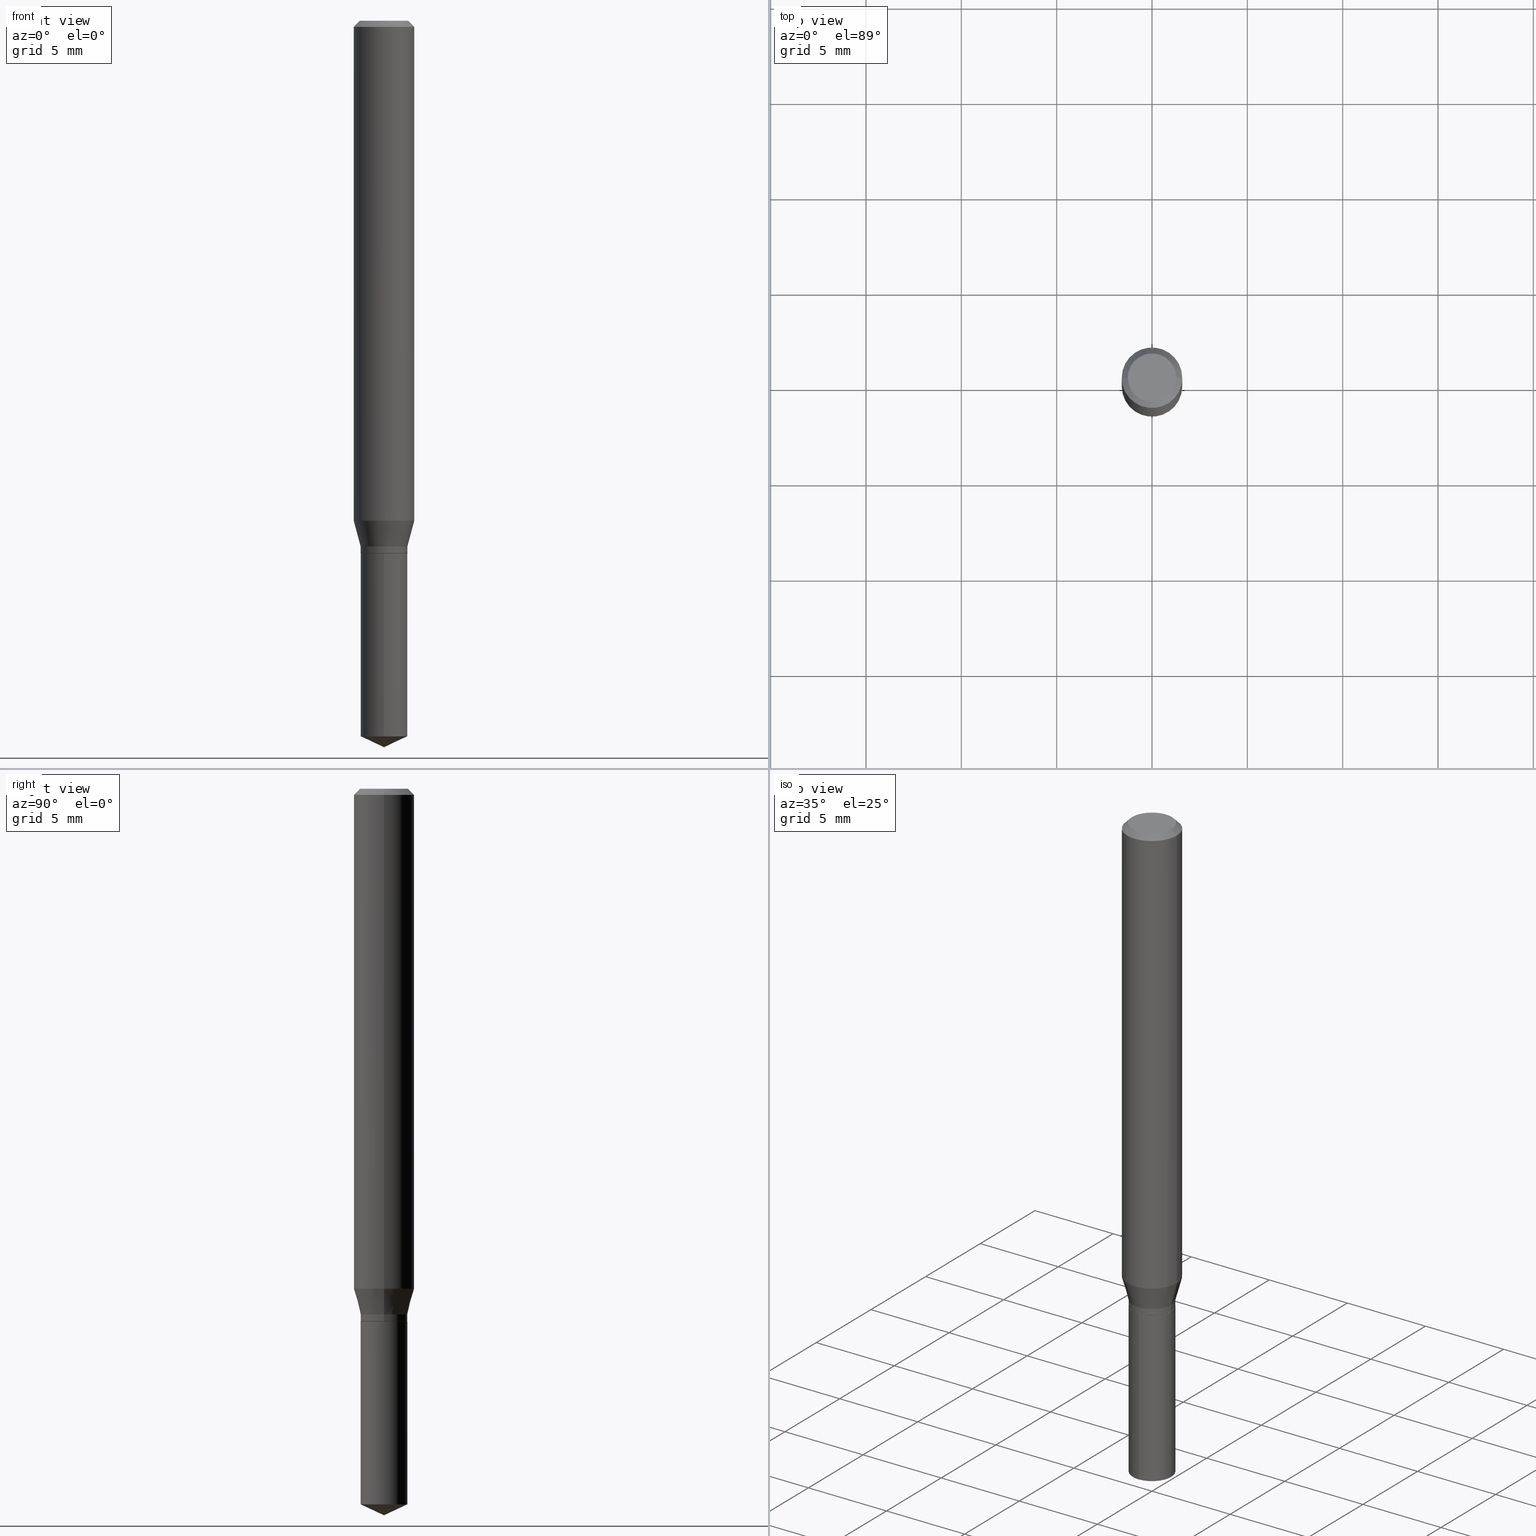
[diagram: canonical four-view strip — front | top / right | iso, engineering-drawing reading convention]
A machine part, canonical four-view strip (front | top / right | iso — engineering-drawing reading convention). The complete STEP part file that produces these views, byte-faithful:
ISO-10303-21;
HEADER;
FILE_DESCRIPTION (( 'STEP AP203' ),
    '1' );
FILE_NAME ('07205.STEP',
    '2024-04-23T19:59:56',
    ( '' ),
    ( '' ),
    'SwSTEP 2.0',
    'SolidWorks 2023',
    '' );
FILE_SCHEMA (( 'CONFIG_CONTROL_DESIGN' ));
ENDSEC;

DATA;
#1 = LINE ( 'NONE', #455, #189 ) ;
#2 = EDGE_CURVE ( 'NONE', #197, #322, #170, .T. ) ;
#3 = APPROVAL_ROLE ( '' ) ;
#4 = PERSON_AND_ORGANIZATION ( #334, #171 ) ;
#5 = VECTOR ( 'NONE', #80, 39.37007874015748854 ) ;
#6 = DIRECTION ( 'NONE',  ( -0.7071067811865451302, 2.468850131082231817E-15, -0.7071067811865499042 ) ) ;
#7 = EDGE_CURVE ( 'NONE', #117, #347, #198, .T. ) ;
#8 = ORIENTED_EDGE ( 'NONE', *, *, #234, .F. ) ;
#9 = ORIENTED_EDGE ( 'NONE', *, *, #402, .T. ) ;
#10 = DIRECTION ( 'NONE',  ( -6.328713451373382000E-15, -0.9063077870366501587, 0.4226182617406989972 ) ) ;
#11 = EDGE_LOOP ( 'NONE', ( #125, #356, #280, #8 ) ) ;
#12 = DIRECTION ( 'NONE',  ( 1.000000000000000000, -6.982962677686267499E-15, 0.000000000000000000 ) ) ;
#13 = DIRECTION ( 'NONE',  ( -0.2588190451025212391, 5.211531920934549464E-15, 0.9659258262890679791 ) ) ;
#14 = DIRECTION ( 'NONE',  ( -0.7071067811865232589, 7.493145998870265808E-15, 0.7071067811865715536 ) ) ;
#15 = ORIENTED_EDGE ( 'NONE', *, *, #2, .F. ) ;
#16 = CIRCLE ( 'NONE', #61, 0.06250000000000000000 ) ;
#17 = CARTESIAN_POINT ( 'NONE',  ( 0.06250000000000012490, -4.040755163728689015E-15, -1.032318275992143430 ) ) ;
#18 = VERTEX_POINT ( 'NONE', #175 ) ;
#19 = ADVANCED_FACE ( 'NONE', ( #328 ), #362, .F. ) ;
#20 = DIRECTION ( 'NONE',  ( 1.000000000000000000, -6.982962677686264344E-15, 0.000000000000000000 ) ) ;
#21 = ORIENTED_EDGE ( 'NONE', *, *, #360, .F. ) ;
#22 = CARTESIAN_POINT ( 'NONE',  ( -3.369279491983354469E-16, -0.04825000000000383843, -1.099999999999999867 ) ) ;
#23 = EDGE_CURVE ( 'NONE', #18, #359, #296, .T. ) ;
#24 = DIRECTION ( 'NONE',  ( -2.445468806185136597E-29, 3.491481338843145583E-15, 1.000000000000000000 ) ) ;
#25 = AXIS2_PLACEMENT_3D ( 'NONE', #446, #291, #290 ) ;
#26 = AXIS2_PLACEMENT_3D ( 'NONE', #390, #469, #355 ) ;
#27 = DIRECTION ( 'NONE',  ( -2.445399690415121530E-29, 3.491580316559632610E-15, 1.000000000000000000 ) ) ;
#28 = CYLINDRICAL_SURFACE ( 'NONE', #405, 0.06250000000000006939 ) ;
#29 = EDGE_CURVE ( 'NONE', #382, #161, #477, .T. ) ;
#30 = DIRECTION ( 'NONE',  ( 1.000000000000000000, -6.982962677686266711E-15, 0.000000000000000000 ) ) ;
#31 = AXIS2_PLACEMENT_3D ( 'NONE', #146, #366, #257 ) ;
#32 = LOCAL_TIME ( 15, 59, 56.00000000000000000, #60 ) ;
#33 = CYLINDRICAL_SURFACE ( 'NONE', #374, 0.06250000000000006939 ) ;
#34 = PRODUCT_DEFINITION ( 'UNKNOWN', '', #145, #50 ) ;
#35 = DIRECTION ( 'NONE',  ( -1.000000000000000000, 6.982962677686265922E-15, -4.876176775795935793E-29 ) ) ;
#36 = DIRECTION ( 'NONE',  ( -2.445468806185136597E-29, 3.491481338843145583E-15, 1.000000000000000000 ) ) ;
#37 = CARTESIAN_POINT ( 'NONE',  ( -0.06250000000000012490, -3.160230786523232758E-15, -1.032318275992143430 ) ) ;
#38 = DIRECTION ( 'NONE',  ( -2.445399690415121530E-29, 3.491580316559632610E-15, 1.000000000000000000 ) ) ;
#39 = ADVANCED_FACE ( 'NONE', ( #288 ), #284, .T. ) ;
#40 = VECTOR ( 'NONE', #104, 39.37007874015748143 ) ;
#41 = FACE_OUTER_BOUND ( 'NONE', #124, .T. ) ;
#42 = CALENDAR_DATE ( 2024, 23, 4 ) ;
#43 = EDGE_CURVE ( 'NONE', #161, #128, #398, .T. ) ;
#44 = CARTESIAN_POINT ( 'NONE',  ( 0.04825000000000000122, -3.369279491983623668E-16, 2.352755294321538936E-30 ) ) ;
#45 = EDGE_CURVE ( 'NONE', #117, #464, #381, .T. ) ;
#46 = ADVANCED_BREP_SHAPE_REPRESENTATION ( '07205', ( #56, #217, #481 ), #354 ) ;
#47 = EDGE_LOOP ( 'NONE', ( #273, #466, #96, #457 ) ) ;
#48 = CONICAL_SURFACE ( 'NONE', #188, 0.06250000000000000000, 0.7853981633974449483 ) ;
#49 = APPROVAL_STATUS ( 'not_yet_approved' ) ;
#50 = DESIGN_CONTEXT ( 'detailed design', #70, 'design' ) ;
#51 = CARTESIAN_POINT ( 'NONE',  ( 3.668099535622682155E-29, -5.237370474839448718E-15, -1.500000000000000222 ) ) ;
#52 = ORIENTED_EDGE ( 'NONE', *, *, #130, .F. ) ;
#53 = ORIENTED_EDGE ( 'NONE', *, *, #400, .T. ) ;
#54 = LINE ( 'NONE', #199, #289 ) ;
#55 = EDGE_LOOP ( 'NONE', ( #345, #101, #231, #310 ) ) ;
#56 = MANIFOLD_SOLID_BREP ( 'Body-Move/Copy2[1]', #473 ) ;
#57 = EDGE_LOOP ( 'NONE', ( #421, #203, #98, #133 ) ) ;
#58 = CC_DESIGN_PERSON_AND_ORGANIZATION_ASSIGNMENT ( #126, #121, ( #182 ) ) ;
#59 = VERTEX_POINT ( 'NONE', #472 ) ;
#60 = COORDINATED_UNIVERSAL_TIME_OFFSET ( 5, 0, .BEHIND. ) ;
#61 = AXIS2_PLACEMENT_3D ( 'NONE', #333, #449, #30 ) ;
#62 = AXIS2_PLACEMENT_3D ( 'NONE', #465, #321, #166 ) ;
#63 = FACE_OUTER_BOUND ( 'NONE', #475, .T. ) ;
#64 = DIRECTION ( 'NONE',  ( -2.445468806185136877E-29, 3.491481338843145188E-15, 1.000000000000000000 ) ) ;
#65 = EDGE_LOOP ( 'NONE', ( #191, #270, #236, #239 ) ) ;
#66 = DIRECTION ( 'NONE',  ( -1.000000000000000000, 6.982962677686266711E-15, 0.000000000000000000 ) ) ;
#67 = DIRECTION ( 'NONE',  ( -2.445399690415121810E-29, 3.491580316559632610E-15, 1.000000000000000000 ) ) ;
#68 = DIRECTION ( 'NONE',  ( -2.445399690415121530E-29, 3.491580316559632610E-15, 1.000000000000000000 ) ) ;
#69 = AXIS2_PLACEMENT_3D ( 'NONE', #95, #237, #388 ) ;
#70 = APPLICATION_CONTEXT ( 'configuration controlled 3d designs of mechanical parts and assemblies' ) ;
#71 = FACE_OUTER_BOUND ( 'NONE', #55, .T. ) ;
#72 = LINE ( 'NONE', #115, #453 ) ;
#73 = EDGE_CURVE ( 'NONE', #382, #59, #204, .T. ) ;
#74 = CARTESIAN_POINT ( 'NONE',  ( 0.04825000000000000122, -4.175811681256400620E-15, -1.099499999999999922 ) ) ;
#75 = AXIS2_PLACEMENT_3D ( 'NONE', #206, #468, #20 ) ;
#76 = CONICAL_SURFACE ( 'NONE', #69, 0.06250000000000000000, 0.7853981633974449483 ) ;
#77 = CARTESIAN_POINT ( 'NONE',  ( 0.000000000000000000, 0.000000000000000000, 0.000000000000000000 ) ) ;
#78 = ADVANCED_FACE ( 'NONE', ( #71 ), #210, .T. ) ;
#79 = FACE_OUTER_BOUND ( 'NONE', #378, .T. ) ;
#80 = DIRECTION ( 'NONE',  ( 0.7071067811865232589, -2.468850131082003836E-15, 0.7071067811865715536 ) ) ;
#81 = PLANE ( 'NONE',  #298 ) ;
#82 = DIRECTION ( 'NONE',  ( -2.445468806185136877E-29, 3.491481338843145188E-15, 1.000000000000000000 ) ) ;
#83 = AXIS2_PLACEMENT_3D ( 'NONE', #308, #377, #413 ) ;
#84 = DATE_AND_TIME ( #94, #480 ) ;
#85 = COORDINATED_UNIVERSAL_TIME_OFFSET ( 5, 0, .BEHIND. ) ;
#86 = ORIENTED_EDGE ( 'NONE', *, *, #292, .F. ) ;
#87 = CALENDAR_DATE ( 2024, 23, 4 ) ;
#88 = PERSON_AND_ORGANIZATION ( #334, #171 ) ;
#89 = ORIENTED_EDGE ( 'NONE', *, *, #295, .T. ) ;
#90 = EDGE_LOOP ( 'NONE', ( #318, #428 ) ) ;
#91 = VECTOR ( 'NONE', #13, 39.37007874015748854 ) ;
#92 = AXIS2_PLACEMENT_3D ( 'NONE', #112, #338, #408 ) ;
#93 = CARTESIAN_POINT ( 'NONE',  ( 2.688792952400557567E-29, -3.838883732058038598E-15, -1.099499999999999922 ) ) ;
#94 = CALENDAR_DATE ( 2024, 23, 4 ) ;
#95 = CARTESIAN_POINT ( 'NONE',  ( 3.056836007731442729E-31, -4.364351673553962300E-17, -0.01250000000000008916 ) ) ;
#96 = ORIENTED_EDGE ( 'NONE', *, *, #2, .T. ) ;
#97 = DIRECTION ( 'NONE',  ( 2.445399690415121250E-29, -3.491580316559632610E-15, -1.000000000000000000 ) ) ;
#98 = ORIENTED_EDGE ( 'NONE', *, *, #234, .T. ) ;
#99 = CARTESIAN_POINT ( 'NONE',  ( 2.690015686803650369E-29, -3.840629472727460101E-15, -1.100000000000000089 ) ) ;
#100 = ADVANCED_FACE ( 'NONE', ( #63 ), #28, .T. ) ;
#101 = ORIENTED_EDGE ( 'NONE', *, *, #357, .T. ) ;
#102 = CONICAL_SURFACE ( 'NONE', #26, 0.04775000000000000078, 0.7853981633974141952 ) ;
#103 = FACE_OUTER_BOUND ( 'NONE', #387, .T. ) ;
#104 = DIRECTION ( 'NONE',  ( -2.445399690415121810E-29, 3.491580316559632610E-15, 1.000000000000000000 ) ) ;
#105 = ORIENTED_EDGE ( 'NONE', *, *, #254, .F. ) ;
#106 = DIRECTION ( 'NONE',  ( -2.438088387897960049E-29, 3.491481338843145188E-15, 1.000000000000000000 ) ) ;
#107 = CARTESIAN_POINT ( 'NONE',  ( 3.613155672880236860E-29, -5.158703330938744656E-15, -1.477500655494021764 ) ) ;
#108 = CARTESIAN_POINT ( 'NONE',  ( 1.946643104841063088E-47, -2.779290439833033990E-33, -7.960204194457798443E-19 ) ) ;
#109 = APPLICATION_CONTEXT ( 'configuration controlled 3d designs of mechanical parts and assemblies' ) ;
#110 = DIRECTION ( 'NONE',  ( -6.982962677686266711E-15, -1.000000000000000000, 2.830930563382656003E-15 ) ) ;
#111 = EDGE_CURVE ( 'NONE', #347, #460, #194, .T. ) ;
#112 = CARTESIAN_POINT ( 'NONE',  ( 2.690015686803650369E-29, -3.840629472727460101E-15, -1.100000000000000089 ) ) ;
#113 = DIRECTION ( 'NONE',  ( 1.000000000000000000, -6.982962677686266711E-15, 4.876176775795935793E-29 ) ) ;
#114 = DIRECTION ( 'NONE',  ( 0.7071067811865451302, -7.319954787623248157E-15, -0.7071067811865499042 ) ) ;
#115 = CARTESIAN_POINT ( 'NONE',  ( 3.668252923656895710E-29, -5.237152723863177100E-15, -1.500000000000000222 ) ) ;
#116 = ADVANCED_FACE ( 'NONE', ( #248 ), #342, .T. ) ;
#117 = VERTEX_POINT ( 'NONE', #471 ) ;
#118 = AXIS2_PLACEMENT_3D ( 'NONE', #281, #324, #174 ) ;
#119 = CIRCLE ( 'NONE', #454, 0.04825000000000000122 ) ;
#120 = VERTEX_POINT ( 'NONE', #285 ) ;
#121 = PERSON_AND_ORGANIZATION_ROLE ( 'classification_officer' ) ;
#122 = LINE ( 'NONE', #44, #205 ) ;
#123 = PERSON_AND_ORGANIZATION ( #334, #171 ) ;
#124 = EDGE_LOOP ( 'NONE', ( #163, #470, #136, #200 ) ) ;
#125 = ORIENTED_EDGE ( 'NONE', *, *, #360, .T. ) ;
#126 = PERSON_AND_ORGANIZATION ( #334, #171 ) ;
#127 = EDGE_LOOP ( 'NONE', ( #459, #196, #21, #167 ) ) ;
#128 = VERTEX_POINT ( 'NONE', #176 ) ;
#129 = AXIS2_PLACEMENT_3D ( 'NONE', #178, #68, #283 ) ;
#130 = EDGE_CURVE ( 'NONE', #347, #322, #437, .T. ) ;
#131 = CIRCLE ( 'NONE', #306, 0.04825000000000000122 ) ;
#132 = CARTESIAN_POINT ( 'NONE',  ( -0.04825000000000000122, 3.428368700042483484E-16, -2.373386181047991895E-30 ) ) ;
#133 = ORIENTED_EDGE ( 'NONE', *, *, #111, .F. ) ;
#134 = DIRECTION ( 'NONE',  ( 1.000000000000000000, -6.982962677686265922E-15, 4.876176775795935793E-29 ) ) ;
#135 = ADVANCED_FACE ( 'NONE', ( #434 ), #226, .T. ) ;
#136 = ORIENTED_EDGE ( 'NONE', *, *, #29, .T. ) ;
#137 = CARTESIAN_POINT ( 'NONE',  ( 3.668099535622682715E-29, -5.237370474839449507E-15, -1.500000000000000222 ) ) ;
#138 = DIRECTION ( 'NONE',  ( 1.000000000000000000, -6.982962677686266711E-15, 4.876176775795935232E-29 ) ) ;
#139 = VERTEX_POINT ( 'NONE', #137 ) ;
#140 = DIRECTION ( 'NONE',  ( -2.445468806185136597E-29, 3.491481338843145583E-15, 1.000000000000000000 ) ) ;
#141 = DIRECTION ( 'NONE',  ( 1.000000000000000000, -6.982962677686267499E-15, 0.000000000000000000 ) ) ;
#142 = CC_DESIGN_PERSON_AND_ORGANIZATION_ASSIGNMENT ( #123, #271, ( #34 ) ) ;
#143 = FACE_OUTER_BOUND ( 'NONE', #169, .T. ) ;
#144 = AXIS2_PLACEMENT_3D ( 'NONE', #287, #365, #141 ) ;
#145 = PRODUCT_DEFINITION_FORMATION_WITH_SPECIFIED_SOURCE ( 'ANY', '', #150, .NOT_KNOWN. ) ;
#146 = CARTESIAN_POINT ( 'NONE',  ( 3.893286209682126177E-47, -5.558580879666067980E-33, -1.592040838891559689E-18 ) ) ;
#147 = CARTESIAN_POINT ( 'NONE',  ( 0.06250000000000000000, -4.800786840909313294E-16, -0.01250000000000008916 ) ) ;
#148 = EDGE_CURVE ( 'NONE', #59, #128, #431, .T. ) ;
#149 = CARTESIAN_POINT ( 'NONE',  ( 0.000000000000000000, 0.000000000000000000, 0.000000000000000000 ) ) ;
#150 = PRODUCT ( '07205', '07205', '', ( #261 ) ) ;
#151 = DIRECTION ( 'NONE',  ( -6.982962677686267499E-15, -1.000000000000000000, 3.520397390770433360E-15 ) ) ;
#152 = AXIS2_PLACEMENT_3D ( 'NONE', #478, #442, #110 ) ;
#153 = AXIS2_PLACEMENT_3D ( 'NONE', #346, #97, #229 ) ;
#154 = DIRECTION ( 'NONE',  ( -2.445399690415121530E-29, 3.491580316559632610E-15, 1.000000000000000000 ) ) ;
#155 = CARTESIAN_POINT ( 'NONE',  ( -0.04775000000000000078, -3.498696089227901352E-15, -1.100000000000000089 ) ) ;
#156 = DATE_TIME_ROLE ( 'creation_date' ) ;
#157 = PERSON_AND_ORGANIZATION ( #334, #171 ) ;
#158 = LOCAL_TIME ( 15, 59, 56.00000000000000000, #85 ) ;
#159 = APPROVAL_STATUS ( 'not_yet_approved' ) ;
#160 = CARTESIAN_POINT ( 'NONE',  ( -3.369279491983261778E-16, -0.04825000000000515682, -1.477500655494021320 ) ) ;
#161 = VERTEX_POINT ( 'NONE', #364 ) ;
#162 = ADVANCED_FACE ( 'NONE', ( #103 ), #48, .T. ) ;
#163 = ORIENTED_EDGE ( 'NONE', *, *, #148, .F. ) ;
#164 = CARTESIAN_POINT ( 'NONE',  ( 3.056836007731442729E-31, -4.364351673553962300E-17, -0.01250000000000008916 ) ) ;
#165 = APPROVAL ( #159, 'UNSPECIFIED' ) ;
#166 = DIRECTION ( 'NONE',  ( 1.000000000000000000, -6.982962677686265922E-15, 4.875957971899673662E-29 ) ) ;
#167 = ORIENTED_EDGE ( 'NONE', *, *, #386, .F. ) ;
#168 = VERTEX_POINT ( 'NONE', #361 ) ;
#169 = EDGE_LOOP ( 'NONE', ( #315, #272, #173, #353 ) ) ;
#170 = CIRCLE ( 'NONE', #440, 0.06250000000000000000 ) ;
#171 = ORGANIZATION ( 'UNSPECIFIED', 'UNSPECIFIED', '' ) ;
#172 = CARTESIAN_POINT ( 'NONE',  ( 0.04825000000000000122, -4.126930942512597731E-15, -1.085500000000000131 ) ) ;
#173 = ORIENTED_EDGE ( 'NONE', *, *, #218, .F. ) ;
#174 = DIRECTION ( 'NONE',  ( 1.000000000000000000, -6.982962677686267499E-15, 0.000000000000000000 ) ) ;
#175 = CARTESIAN_POINT ( 'NONE',  ( 0.04775000000000000078, -4.174065940586979116E-15, -1.100000000000000089 ) ) ;
#176 = CARTESIAN_POINT ( 'NONE',  ( 3.428368700042844881E-16, 0.04824999999999615707, -1.100000000000000089 ) ) ;
#177 = EDGE_CURVE ( 'NONE', #59, #382, #180, .T. ) ;
#178 = CARTESIAN_POINT ( 'NONE',  ( -9.260740279983036507E-28, 1.322265303911854087E-13, 37.87007874015748143 ) ) ;
#179 = DIRECTION ( 'NONE',  ( 1.000000000000000000, -6.982962677686266711E-15, 4.876176775795935793E-29 ) ) ;
#180 = CIRCLE ( 'NONE', #325, 0.04825000000000000122 ) ;
#181 = DIRECTION ( 'NONE',  ( -6.982962677686266711E-15, -1.000000000000000000, 2.830930563382656003E-15 ) ) ;
#182 = SECURITY_CLASSIFICATION ( '', '', #312 ) ;
#183 = DIRECTION ( 'NONE',  ( -6.982962677686266711E-15, -1.000000000000000000, 2.830930563382656003E-15 ) ) ;
#184 = CC_DESIGN_DATE_AND_TIME_ASSIGNMENT ( #417, #241, ( #182 ) ) ;
#185 = CARTESIAN_POINT ( 'NONE',  ( -9.260740279983036507E-28, 1.322265303911854087E-13, 37.87007874015748143 ) ) ;
#186 =( LENGTH_UNIT ( ) NAMED_UNIT ( * ) SI_UNIT ( $, .METRE. ) );
#187 = DIRECTION ( 'NONE',  ( 0.2588190451025212391, 1.565188264969622362E-15, 0.9659258262890679791 ) ) ;
#188 = AXIS2_PLACEMENT_3D ( 'NONE', #247, #396, #66 ) ;
#189 = VECTOR ( 'NONE', #6, 39.37007874015748143 ) ;
#190 = DATE_AND_TIME ( #42, #407 ) ;
#191 = ORIENTED_EDGE ( 'NONE', *, *, #438, .F. ) ;
#192 = DIRECTION ( 'NONE',  ( -2.445468806185136597E-29, 3.491481338843145583E-15, 1.000000000000000000 ) ) ;
#193 = ADVANCED_FACE ( 'NONE', ( #373 ), #489, .T. ) ;
#194 = CIRCLE ( 'NONE', #75, 0.06250000000000012490 ) ;
#195 = ORIENTED_EDGE ( 'NONE', *, *, #130, .T. ) ;
#196 = ORIENTED_EDGE ( 'NONE', *, *, #435, .T. ) ;
#197 = VERTEX_POINT ( 'NONE', #147 ) ;
#198 = LINE ( 'NONE', #340, #91 ) ;
#199 = CARTESIAN_POINT ( 'NONE',  ( -0.04775000000000000078, -3.501345316402012553E-15, -1.100000000000000089 ) ) ;
#200 = ORIENTED_EDGE ( 'NONE', *, *, #331, .F. ) ;
#201 = SHAPE_DEFINITION_REPRESENTATION ( #483, #46 ) ;
#202 = AXIS2_PLACEMENT_3D ( 'NONE', #185, #482, #151 ) ;
#203 = ORIENTED_EDGE ( 'NONE', *, *, #45, .T. ) ;
#204 = CIRCLE ( 'NONE', #411, 0.04825000000000000122 ) ;
#205 = VECTOR ( 'NONE', #64, 39.37007874015748143 ) ;
#206 = CARTESIAN_POINT ( 'NONE',  ( 2.524502141993605107E-29, -3.604319996373296557E-15, -1.032318275992143430 ) ) ;
#207 = ORIENTED_EDGE ( 'NONE', *, *, #267, .F. ) ;
#208 = CC_DESIGN_DATE_AND_TIME_ASSIGNMENT ( #190, #156, ( #34 ) ) ;
#209 = CARTESIAN_POINT ( 'NONE',  ( 2.654556389113966413E-29, -3.790002993314234920E-15, -1.085500000000000131 ) ) ;
#210 = CYLINDRICAL_SURFACE ( 'NONE', #256, 0.04825000000000000122 ) ;
#211 = FACE_OUTER_BOUND ( 'NONE', #314, .T. ) ;
#212 = VECTOR ( 'NONE', #67, 39.37007874015748143 ) ;
#213 = CARTESIAN_POINT ( 'NONE',  ( 3.428368700042751696E-16, 0.04824999999999615707, -1.100000000000000089 ) ) ;
#214 = ADVANCED_FACE ( 'NONE', ( #293 ), #251, .T. ) ;
#215 = DIRECTION ( 'NONE',  ( -6.982962677686266711E-15, -1.000000000000000000, 2.830930563382656003E-15 ) ) ;
#216 = DIRECTION ( 'NONE',  ( 2.438088387897960049E-29, -3.491481338843145188E-15, -1.000000000000000000 ) ) ;
#217 = MANIFOLD_SOLID_BREP ( 'Body-Move/Copy2[2]', #367 ) ;
#218 = EDGE_CURVE ( 'NONE', #245, #120, #479, .T. ) ;
#219 = FACE_OUTER_BOUND ( 'NONE', #395, .T. ) ;
#220 = CC_DESIGN_SECURITY_CLASSIFICATION ( #182, ( #145 ) ) ;
#221 =( NAMED_UNIT ( * ) SI_UNIT ( $, .STERADIAN. ) SOLID_ANGLE_UNIT ( ) );
#222 = PLANE ( 'NONE',  #153 ) ;
#223 = LINE ( 'NONE', #404, #5 ) ;
#224 = CARTESIAN_POINT ( 'NONE',  ( 3.613155672880236860E-29, -5.158703330938744656E-15, -1.477500655494021764 ) ) ;
#225 = DIRECTION ( 'NONE',  ( -2.445399690415121530E-29, 3.491580316559632610E-15, 1.000000000000000000 ) ) ;
#226 = CONICAL_SURFACE ( 'NONE', #129, 84.42940631927483253, 1.134464013796318227 ) ;
#227 = ADVANCED_FACE ( 'NONE', ( #410 ), #297, .T. ) ;
#228 = LOCAL_TIME ( 15, 59, 56.00000000000000000, #309 ) ;
#229 = DIRECTION ( 'NONE',  ( 6.982962677686265922E-15, 1.000000000000000000, -3.491580316559632610E-15 ) ) ;
#230 = APPROVAL_DATE_TIME ( #84, #371 ) ;
#231 = ORIENTED_EDGE ( 'NONE', *, *, #386, .T. ) ;
#232 = DATE_AND_TIME ( #452, #228 ) ;
#233 = ORIENTED_EDGE ( 'NONE', *, *, #177, .F. ) ;
#234 = EDGE_CURVE ( 'NONE', #464, #460, #370, .T. ) ;
#235 = VECTOR ( 'NONE', #279, 39.37007874015748143 ) ;
#236 = ORIENTED_EDGE ( 'NONE', *, *, #490, .T. ) ;
#237 = DIRECTION ( 'NONE',  ( 2.445468806185136597E-29, -3.491481338843145583E-15, -1.000000000000000000 ) ) ;
#238 = ORIENTED_EDGE ( 'NONE', *, *, #148, .T. ) ;
#239 = ORIENTED_EDGE ( 'NONE', *, *, #357, .F. ) ;
#240 = ORIENTED_EDGE ( 'NONE', *, *, #402, .F. ) ;
#241 = DATE_TIME_ROLE ( 'classification_date' ) ;
#242 = DIRECTION ( 'NONE',  ( -2.445468806185136597E-29, 3.491481338843145583E-15, 1.000000000000000000 ) ) ;
#243 = ADVANCED_FACE ( 'NONE', ( #41 ), #409, .T. ) ;
#244 = CIRCLE ( 'NONE', #31, 0.04999999999999999584 ) ;
#245 = VERTEX_POINT ( 'NONE', #74 ) ;
#246 = CIRCLE ( 'NONE', #92, 0.04775000000000000078 ) ;
#247 = CARTESIAN_POINT ( 'NONE',  ( 3.056836007731442729E-31, -4.364351673553962300E-17, -0.01250000000000008916 ) ) ;
#248 = FACE_OUTER_BOUND ( 'NONE', #11, .T. ) ;
#249 = CARTESIAN_POINT ( 'NONE',  ( -0.06250000000000006939, 4.440892098500631092E-16, -3.074334431409319267E-30 ) ) ;
#250 = DIMENSIONAL_EXPONENTS ( 1.000000000000000000, 0.000000000000000000, 0.000000000000000000, 0.000000000000000000, 0.000000000000000000, 0.000000000000000000, 0.000000000000000000 ) ;
#251 = CONICAL_SURFACE ( 'NONE', #202, 84.42940631927483253, 1.134464013796318227 ) ;
#252 = DIRECTION ( 'NONE',  ( 1.000000000000000000, -6.982962677686267499E-15, 0.000000000000000000 ) ) ;
#253 = CARTESIAN_POINT ( 'NONE',  ( -0.06250000000000000000, -1.379892546704354260E-15, -0.01250000000000008916 ) ) ;
#254 = EDGE_CURVE ( 'NONE', #424, #197, #485, .T. ) ;
#255 = DIRECTION ( 'NONE',  ( 6.439704144417036664E-15, 0.9063077870366530453, 0.4226182617406927244 ) ) ;
#256 = AXIS2_PLACEMENT_3D ( 'NONE', #392, #24, #138 ) ;
#257 = DIRECTION ( 'NONE',  ( 1.000000000000000000, -6.982962677686265922E-15, 4.875957971899673662E-29 ) ) ;
#258 = DIRECTION ( 'NONE',  ( 0.000000000000000000, 0.000000000000000000, 1.000000000000000000 ) ) ;
#259 = EDGE_CURVE ( 'NONE', #460, #197, #329, .T. ) ;
#260 = CARTESIAN_POINT ( 'NONE',  ( 2.690015686803650369E-29, -3.840629472727460101E-15, -1.100000000000000089 ) ) ;
#261 = MECHANICAL_CONTEXT ( 'NONE', #109, 'mechanical' ) ;
#262 = DIRECTION ( 'NONE',  ( -2.445468806185136597E-29, 3.491481338843145583E-15, 1.000000000000000000 ) ) ;
#263 = PRODUCT_RELATED_PRODUCT_CATEGORY ( 'detail', '', ( #150 ) ) ;
#264 = VECTOR ( 'NONE', #187, 39.37007874015748854 ) ;
#265 = APPROVAL_ROLE ( '' ) ;
#266 = AXIS2_PLACEMENT_3D ( 'NONE', #260, #262, #403 ) ;
#267 = EDGE_CURVE ( 'NONE', #322, #197, #16, .T. ) ;
#268 = APPROVAL_STATUS ( 'not_yet_approved' ) ;
#269 = CC_DESIGN_PERSON_AND_ORGANIZATION_ASSIGNMENT ( #418, #385, ( #150 ) ) ;
#270 = ORIENTED_EDGE ( 'NONE', *, *, #339, .T. ) ;
#271 = PERSON_AND_ORGANIZATION_ROLE ( 'creator' ) ;
#272 = ORIENTED_EDGE ( 'NONE', *, *, #438, .T. ) ;
#273 = ORIENTED_EDGE ( 'NONE', *, *, #295, .F. ) ;
#274 = PERSON_AND_ORGANIZATION ( #334, #171 ) ;
#275 = DIRECTION ( 'NONE',  ( 1.000000000000000000, -6.982962677686266711E-15, 0.000000000000000000 ) ) ;
#276 = AXIS2_PLACEMENT_3D ( 'NONE', #358, #27, #215 ) ;
#277 = CIRCLE ( 'NONE', #62, 0.04999999999999999584 ) ;
#278 = ORIENTED_EDGE ( 'NONE', *, *, #29, .F. ) ;
#279 = DIRECTION ( 'NONE',  ( -2.445468806185136877E-29, 3.491481338843145188E-15, 1.000000000000000000 ) ) ;
#280 = ORIENTED_EDGE ( 'NONE', *, *, #380, .F. ) ;
#281 = CARTESIAN_POINT ( 'NONE',  ( 2.654556389113966413E-29, -3.790002993314234920E-15, -1.085500000000000131 ) ) ;
#282 = ORIENTED_EDGE ( 'NONE', *, *, #43, .T. ) ;
#283 = DIRECTION ( 'NONE',  ( -6.982962677686267499E-15, -1.000000000000000000, 3.520397390770433360E-15 ) ) ;
#284 = CONICAL_SURFACE ( 'NONE', #432, 0.04825000000000000122, 0.2617993877991499629 ) ;
#285 = CARTESIAN_POINT ( 'NONE',  ( -0.04825000000000000122, -3.471606492681888312E-15, -1.099499999999999922 ) ) ;
#286 = ORIENTED_EDGE ( 'NONE', *, *, #73, .F. ) ;
#287 = CARTESIAN_POINT ( 'NONE',  ( 2.690015686803650369E-29, -3.840629472727460101E-15, -1.100000000000000089 ) ) ;
#288 = FACE_OUTER_BOUND ( 'NONE', #57, .T. ) ;
#289 = VECTOR ( 'NONE', #14, 39.37007874015748854 ) ;
#290 = DIRECTION ( 'NONE',  ( 1.000000000000000000, -6.982962677686266711E-15, 4.876176775795935232E-29 ) ) ;
#291 = DIRECTION ( 'NONE',  ( -2.445468806185136597E-29, 3.491481338843145583E-15, 1.000000000000000000 ) ) ;
#292 = EDGE_CURVE ( 'NONE', #139, #59, #72, .T. ) ;
#293 = FACE_OUTER_BOUND ( 'NONE', #311, .T. ) ;
#294 =( NAMED_UNIT ( * ) PLANE_ANGLE_UNIT ( ) SI_UNIT ( $, .RADIAN. ) );
#295 = EDGE_CURVE ( 'NONE', #424, #168, #244, .T. ) ;
#296 = CIRCLE ( 'NONE', #144, 0.04775000000000000078 ) ;
#297 = CYLINDRICAL_SURFACE ( 'NONE', #25, 0.04825000000000000122 ) ;
#298 = AXIS2_PLACEMENT_3D ( 'NONE', #108, #216, #35 ) ;
#299 = ADVANCED_FACE ( 'NONE', ( #143 ), #488, .T. ) ;
#300 = CARTESIAN_POINT ( 'NONE',  ( 2.688792952400557567E-29, -3.838883732058038598E-15, -1.099499999999999922 ) ) ;
#301 = CARTESIAN_POINT ( 'NONE',  ( 2.654556389113966413E-29, -3.790002993314234920E-15, -1.085500000000000131 ) ) ;
#302 = ADVANCED_FACE ( 'NONE', ( #219 ), #81, .F. ) ;
#303 = VECTOR ( 'NONE', #114, 39.37007874015748143 ) ;
#304 = PERSON_AND_ORGANIZATION_ROLE ( 'creator' ) ;
#305 = CC_DESIGN_PERSON_AND_ORGANIZATION_ASSIGNMENT ( #157, #304, ( #145 ) ) ;
#306 = AXIS2_PLACEMENT_3D ( 'NONE', #401, #38, #183 ) ;
#307 = ORIENTED_EDGE ( 'NONE', *, *, #267, .T. ) ;
#308 = CARTESIAN_POINT ( 'NONE',  ( 2.524502141993605107E-29, -3.604319996373296557E-15, -1.032318275992143430 ) ) ;
#309 = COORDINATED_UNIVERSAL_TIME_OFFSET ( 5, 0, .BEHIND. ) ;
#310 = ORIENTED_EDGE ( 'NONE', *, *, #45, .F. ) ;
#311 = EDGE_LOOP ( 'NONE', ( #426, #349, #286 ) ) ;
#312 = SECURITY_CLASSIFICATION_LEVEL ( 'unclassified' ) ;
#313 = DIRECTION ( 'NONE',  ( -2.445468806185136597E-29, 3.491481338843145583E-15, 1.000000000000000000 ) ) ;
#314 = EDGE_LOOP ( 'NONE', ( #461, #195, #15, #389 ) ) ;
#315 = ORIENTED_EDGE ( 'NONE', *, *, #23, .T. ) ;
#316 = VECTOR ( 'NONE', #10, 39.37007874015748143 ) ;
#317 = CARTESIAN_POINT ( 'NONE',  ( 0.04999999999999999584, -4.077247707424184705E-16, -1.592040838888913461E-18 ) ) ;
#318 = ORIENTED_EDGE ( 'NONE', *, *, #23, .F. ) ;
#319 = APPROVAL_DATE_TIME ( #383, #165 ) ;
#320 = ORIENTED_EDGE ( 'NONE', *, *, #331, .T. ) ;
#321 = DIRECTION ( 'NONE',  ( -2.445468806185136597E-29, 3.491481338843145583E-15, 1.000000000000000000 ) ) ;
#322 = VERTEX_POINT ( 'NONE', #253 ) ;
#323 = CARTESIAN_POINT ( 'NONE',  ( 0.000000000000000000, 0.000000000000000000, 0.000000000000000000 ) ) ;
#324 = DIRECTION ( 'NONE',  ( -2.445468806185136597E-29, 3.491481338843145583E-15, 1.000000000000000000 ) ) ;
#325 = AXIS2_PLACEMENT_3D ( 'NONE', #224, #154, #484 ) ;
#326 = ORIENTED_EDGE ( 'NONE', *, *, #259, .T. ) ;
#327 = DIRECTION ( 'NONE',  ( -6.982962677686266711E-15, -1.000000000000000000, 5.661861126765312006E-15 ) ) ;
#328 = FACE_OUTER_BOUND ( 'NONE', #90, .T. ) ;
#329 = LINE ( 'NONE', #450, #393 ) ;
#330 = APPROVAL_PERSON_ORGANIZATION ( #88, #371, #265 ) ;
#331 = EDGE_CURVE ( 'NONE', #128, #161, #131, .T. ) ;
#332 = CARTESIAN_POINT ( 'NONE',  ( 0.06250000000000000000, -4.724246415962603826E-16, -0.01250000000000008916 ) ) ;
#333 = CARTESIAN_POINT ( 'NONE',  ( 3.056836007731442729E-31, -4.364351673553962300E-17, -0.01250000000000008916 ) ) ;
#334 = PERSON ( 'UNSPECIFIED', 'UNSPECIFIED', 'UNSPECIFIED', ('UNSPECIFIED'), ('UNSPECIFIED'), ('UNSPECIFIED') ) ;
#335 = CARTESIAN_POINT ( 'NONE',  ( 0.04825000000000000122, -4.126930942512597731E-15, -1.085500000000000131 ) ) ;
#336 =( CONVERSION_BASED_UNIT ( 'INCH', #486 ) LENGTH_UNIT ( ) NAMED_UNIT ( #250 ) );
#337 = VECTOR ( 'NONE', #397, 39.37007874015748143 ) ;
#338 = DIRECTION ( 'NONE',  ( -2.445468806185136597E-29, 3.491481338843145583E-15, 1.000000000000000000 ) ) ;
#339 = EDGE_CURVE ( 'NONE', #359, #18, #246, .T. ) ;
#340 = CARTESIAN_POINT ( 'NONE',  ( -0.04825000000000000122, -3.447166123309986473E-15, -1.085500000000000131 ) ) ;
#341 = DIRECTION ( 'NONE',  ( 1.000000000000000000, 0.000000000000000000, 0.000000000000000000 ) ) ;
#342 = CONICAL_SURFACE ( 'NONE', #118, 0.04825000000000000122, 0.2617993877991499629 ) ;
#343 = ORIENTED_EDGE ( 'NONE', *, *, #111, .T. ) ;
#344 = CC_DESIGN_APPROVAL ( #416, ( #34 ) ) ;
#345 = ORIENTED_EDGE ( 'NONE', *, *, #435, .F. ) ;
#346 = CARTESIAN_POINT ( 'NONE',  ( 2.690015686803650369E-29, -3.840629472727460101E-15, -1.100000000000000089 ) ) ;
#347 = VERTEX_POINT ( 'NONE', #37 ) ;
#348 = ADVANCED_FACE ( 'NONE', ( #79 ), #222, .F. ) ;
#349 = ORIENTED_EDGE ( 'NONE', *, *, #292, .T. ) ;
#350 = APPLICATION_PROTOCOL_DEFINITION ( 'international standard', 'config_control_design', 1994, #70 ) ;
#351 = EDGE_CURVE ( 'NONE', #168, #322, #1, .T. ) ;
#352 = LINE ( 'NONE', #132, #235 ) ;
#353 = ORIENTED_EDGE ( 'NONE', *, *, #490, .F. ) ;
#354 =( GEOMETRIC_REPRESENTATION_CONTEXT ( 3 ) GLOBAL_UNCERTAINTY_ASSIGNED_CONTEXT ( ( #375 ) ) GLOBAL_UNIT_ASSIGNED_CONTEXT ( ( #336, #294, #221 ) ) REPRESENTATION_CONTEXT ( 'NONE', 'WORKASPACE' ) );
#355 = DIRECTION ( 'NONE',  ( 1.000000000000000000, -6.982962677686267499E-15, 0.000000000000000000 ) ) ;
#356 = ORIENTED_EDGE ( 'NONE', *, *, #7, .T. ) ;
#357 = EDGE_CURVE ( 'NONE', #120, #245, #119, .T. ) ;
#358 = CARTESIAN_POINT ( 'NONE',  ( 2.690015686803650369E-29, -3.840629472727460101E-15, -1.100000000000000089 ) ) ;
#359 = VERTEX_POINT ( 'NONE', #155 ) ;
#360 = EDGE_CURVE ( 'NONE', #464, #117, #414, .T. ) ;
#361 = CARTESIAN_POINT ( 'NONE',  ( -0.04999999999999999584, 3.709698922520826725E-16, -1.592040838894077649E-18 ) ) ;
#362 = PLANE ( 'NONE',  #487 ) ;
#363 = AXIS2_PLACEMENT_3D ( 'NONE', #301, #192, #451 ) ;
#364 = CARTESIAN_POINT ( 'NONE',  ( -3.369279491983354469E-16, -0.04825000000000383843, -1.099999999999999867 ) ) ;
#365 = DIRECTION ( 'NONE',  ( -2.445468806185136597E-29, 3.491481338843145583E-15, 1.000000000000000000 ) ) ;
#366 = DIRECTION ( 'NONE',  ( -2.445468806185136597E-29, 3.491481338843145583E-15, 1.000000000000000000 ) ) ;
#367 = CLOSED_SHELL ( 'NONE', ( #299, #406, #474, #116, #227, #78, #39, #100, #162, #302, #19, #443 ) ) ;
#368 = APPROVAL_PERSON_ORGANIZATION ( #467, #165, #379 ) ;
#369 = DIRECTION ( 'NONE',  ( -2.445468806185136597E-29, 3.491481338843145583E-15, 1.000000000000000000 ) ) ;
#370 = LINE ( 'NONE', #335, #264 ) ;
#371 = APPROVAL ( #49, 'UNSPECIFIED' ) ;
#372 = CARTESIAN_POINT ( 'NONE',  ( 2.690015686803650369E-29, -3.840629472727460101E-15, -1.100000000000000089 ) ) ;
#373 = FACE_OUTER_BOUND ( 'NONE', #462, .T. ) ;
#374 = AXIS2_PLACEMENT_3D ( 'NONE', #149, #36, #113 ) ;
#375 = UNCERTAINTY_MEASURE_WITH_UNIT (LENGTH_MEASURE( 1.000000000000000082E-05 ), #336, 'distance_accuracy_value', 'NONE');
#376 = CALENDAR_DATE ( 2024, 23, 4 ) ;
#377 = DIRECTION ( 'NONE',  ( -2.445468806185136597E-29, 3.491481338843145583E-15, 1.000000000000000000 ) ) ;
#378 = EDGE_LOOP ( 'NONE', ( #282, #320 ) ) ;
#379 = APPROVAL_ROLE ( '' ) ;
#380 = EDGE_CURVE ( 'NONE', #460, #347, #422, .T. ) ;
#381 = CIRCLE ( 'NONE', #412, 0.04825000000000000122 ) ;
#382 = VERTEX_POINT ( 'NONE', #160 ) ;
#383 = DATE_AND_TIME ( #376, #158 ) ;
#384 = DIRECTION ( 'NONE',  ( -2.445468806185136597E-29, 3.491481338843145583E-15, 1.000000000000000000 ) ) ;
#385 = PERSON_AND_ORGANIZATION_ROLE ( 'design_owner' ) ;
#386 = EDGE_CURVE ( 'NONE', #245, #464, #122, .T. ) ;
#387 = EDGE_LOOP ( 'NONE', ( #105, #240, #419, #307 ) ) ;
#388 = DIRECTION ( 'NONE',  ( -1.000000000000000000, 6.982962677686266711E-15, 0.000000000000000000 ) ) ;
#389 = ORIENTED_EDGE ( 'NONE', *, *, #259, .F. ) ;
#390 = CARTESIAN_POINT ( 'NONE',  ( 2.690015686803650369E-29, -3.840629472727460101E-15, -1.100000000000000089 ) ) ;
#391 = EDGE_LOOP ( 'NONE', ( #86, #53, #233 ) ) ;
#392 = CARTESIAN_POINT ( 'NONE',  ( 0.000000000000000000, 0.000000000000000000, 0.000000000000000000 ) ) ;
#393 = VECTOR ( 'NONE', #82, 39.37007874015748143 ) ;
#394 = CC_DESIGN_APPROVAL ( #371, ( #145 ) ) ;
#395 = EDGE_LOOP ( 'NONE', ( #9, #89 ) ) ;
#396 = DIRECTION ( 'NONE',  ( 2.445468806185136597E-29, -3.491481338843145583E-15, -1.000000000000000000 ) ) ;
#397 = DIRECTION ( 'NONE',  ( -2.445468806185136877E-29, 3.491481338843145188E-15, 1.000000000000000000 ) ) ;
#398 = CIRCLE ( 'NONE', #276, 0.04825000000000000122 ) ;
#399 = DIRECTION ( 'NONE',  ( -2.445399690415121530E-29, 3.491580316559632610E-15, 1.000000000000000000 ) ) ;
#400 = EDGE_CURVE ( 'NONE', #139, #382, #456, .T. ) ;
#401 = CARTESIAN_POINT ( 'NONE',  ( 2.690015686803650369E-29, -3.840629472727460101E-15, -1.100000000000000089 ) ) ;
#402 = EDGE_CURVE ( 'NONE', #168, #424, #277, .T. ) ;
#403 = DIRECTION ( 'NONE',  ( 1.000000000000000000, -6.982962677686267499E-15, 0.000000000000000000 ) ) ;
#404 = CARTESIAN_POINT ( 'NONE',  ( 0.04775000000000000078, -4.174065940586979116E-15, -1.100000000000000089 ) ) ;
#405 = AXIS2_PLACEMENT_3D ( 'NONE', #323, #476, #179 ) ;
#406 = ADVANCED_FACE ( 'NONE', ( #423 ), #76, .T. ) ;
#407 = LOCAL_TIME ( 15, 59, 56.00000000000000000, #420 ) ;
#408 = DIRECTION ( 'NONE',  ( 1.000000000000000000, -6.982962677686267499E-15, 0.000000000000000000 ) ) ;
#409 = CYLINDRICAL_SURFACE ( 'NONE', #152, 0.04825000000000000122 ) ;
#410 = FACE_OUTER_BOUND ( 'NONE', #127, .T. ) ;
#411 = AXIS2_PLACEMENT_3D ( 'NONE', #107, #399, #327 ) ;
#412 = AXIS2_PLACEMENT_3D ( 'NONE', #209, #242, #439 ) ;
#413 = DIRECTION ( 'NONE',  ( 1.000000000000000000, -6.982962677686264344E-15, 0.000000000000000000 ) ) ;
#414 = CIRCLE ( 'NONE', #363, 0.04825000000000000122 ) ;
#415 = COORDINATED_UNIVERSAL_TIME_OFFSET ( 5, 0, .BEHIND. ) ;
#416 = APPROVAL ( #268, 'UNSPECIFIED' ) ;
#417 = DATE_AND_TIME ( #87, #32 ) ;
#418 = PERSON_AND_ORGANIZATION ( #334, #171 ) ;
#419 = ORIENTED_EDGE ( 'NONE', *, *, #351, .T. ) ;
#420 = COORDINATED_UNIVERSAL_TIME_OFFSET ( 5, 0, .BEHIND. ) ;
#421 = ORIENTED_EDGE ( 'NONE', *, *, #7, .F. ) ;
#422 = CIRCLE ( 'NONE', #83, 0.06250000000000012490 ) ;
#423 = FACE_OUTER_BOUND ( 'NONE', #47, .T. ) ;
#424 = VERTEX_POINT ( 'NONE', #317 ) ;
#425 = PERSON_AND_ORGANIZATION_ROLE ( 'design_supplier' ) ;
#426 = ORIENTED_EDGE ( 'NONE', *, *, #400, .F. ) ;
#427 = FACE_OUTER_BOUND ( 'NONE', #65, .T. ) ;
#428 = ORIENTED_EDGE ( 'NONE', *, *, #339, .F. ) ;
#429 = CARTESIAN_POINT ( 'NONE',  ( 2.654556389113966413E-29, -3.790002993314234920E-15, -1.085500000000000131 ) ) ;
#430 = ORIENTED_EDGE ( 'NONE', *, *, #43, .F. ) ;
#431 = LINE ( 'NONE', #213, #40 ) ;
#432 = AXIS2_PLACEMENT_3D ( 'NONE', #429, #140, #252 ) ;
#433 = CC_DESIGN_APPROVAL ( #165, ( #182 ) ) ;
#434 = FACE_OUTER_BOUND ( 'NONE', #391, .T. ) ;
#435 = EDGE_CURVE ( 'NONE', #120, #117, #352, .T. ) ;
#436 = ORIENTED_EDGE ( 'NONE', *, *, #73, .T. ) ;
#437 = LINE ( 'NONE', #249, #337 ) ;
#438 = EDGE_CURVE ( 'NONE', #359, #120, #54, .T. ) ;
#439 = DIRECTION ( 'NONE',  ( 1.000000000000000000, -6.982962677686267499E-15, 0.000000000000000000 ) ) ;
#440 = AXIS2_PLACEMENT_3D ( 'NONE', #164, #313, #275 ) ;
#441 = APPROVAL_PERSON_ORGANIZATION ( #274, #416, #3 ) ;
#442 = DIRECTION ( 'NONE',  ( -2.445399690415121530E-29, 3.491580316559632610E-15, 1.000000000000000000 ) ) ;
#443 = ADVANCED_FACE ( 'NONE', ( #427 ), #102, .T. ) ;
#444 = DIRECTION ( 'NONE',  ( 1.000000000000000000, -6.982962677686267499E-15, 0.000000000000000000 ) ) ;
#445 = CC_DESIGN_PERSON_AND_ORGANIZATION_ASSIGNMENT ( #4, #425, ( #145 ) ) ;
#446 = CARTESIAN_POINT ( 'NONE',  ( 0.000000000000000000, 0.000000000000000000, 0.000000000000000000 ) ) ;
#447 = APPLICATION_PROTOCOL_DEFINITION ( 'international standard', 'config_control_design', 1994, #109 ) ;
#448 = AXIS2_PLACEMENT_3D ( 'NONE', #300, #369, #444 ) ;
#449 = DIRECTION ( 'NONE',  ( -2.445468806185136597E-29, 3.491481338843145583E-15, 1.000000000000000000 ) ) ;
#450 = CARTESIAN_POINT ( 'NONE',  ( 0.06250000000000006939, -4.364351673553921624E-16, 3.047610484872463374E-30 ) ) ;
#451 = DIRECTION ( 'NONE',  ( 1.000000000000000000, -6.982962677686267499E-15, 0.000000000000000000 ) ) ;
#452 = CALENDAR_DATE ( 2024, 23, 4 ) ;
#453 = VECTOR ( 'NONE', #255, 39.37007874015748854 ) ;
#454 = AXIS2_PLACEMENT_3D ( 'NONE', #93, #384, #12 ) ;
#455 = CARTESIAN_POINT ( 'NONE',  ( -0.06250000000000000000, 3.927916506198520587E-16, -0.01250000000000008916 ) ) ;
#456 = LINE ( 'NONE', #51, #316 ) ;
#457 = ORIENTED_EDGE ( 'NONE', *, *, #351, .F. ) ;
#458 = APPROVAL_DATE_TIME ( #232, #416 ) ;
#459 = ORIENTED_EDGE ( 'NONE', *, *, #218, .T. ) ;
#460 = VERTEX_POINT ( 'NONE', #17 ) ;
#461 = ORIENTED_EDGE ( 'NONE', *, *, #380, .T. ) ;
#462 = EDGE_LOOP ( 'NONE', ( #436, #238, #430, #278 ) ) ;
#463 = AXIS2_PLACEMENT_3D ( 'NONE', #372, #225, #181 ) ;
#464 = VERTEX_POINT ( 'NONE', #172 ) ;
#465 = CARTESIAN_POINT ( 'NONE',  ( 3.893286209682126177E-47, -5.558580879666067980E-33, -1.592040838891559689E-18 ) ) ;
#466 = ORIENTED_EDGE ( 'NONE', *, *, #254, .T. ) ;
#467 = PERSON_AND_ORGANIZATION ( #334, #171 ) ;
#468 = DIRECTION ( 'NONE',  ( -2.445468806185136597E-29, 3.491481338843145583E-15, 1.000000000000000000 ) ) ;
#469 = DIRECTION ( 'NONE',  ( -2.445468806185136597E-29, 3.491481338843145583E-15, 1.000000000000000000 ) ) ;
#470 = ORIENTED_EDGE ( 'NONE', *, *, #177, .T. ) ;
#471 = CARTESIAN_POINT ( 'NONE',  ( -0.04825000000000000122, -3.471606492681888312E-15, -1.085500000000000131 ) ) ;
#472 = CARTESIAN_POINT ( 'NONE',  ( 3.428368700042844881E-16, 0.04824999999999484562, -1.477500655494021986 ) ) ;
#473 = CLOSED_SHELL ( 'NONE', ( #193, #214, #135, #243, #348 ) ) ;
#474 = ADVANCED_FACE ( 'NONE', ( #211 ), #33, .T. ) ;
#475 = EDGE_LOOP ( 'NONE', ( #52, #343, #326, #207 ) ) ;
#476 = DIRECTION ( 'NONE',  ( -2.445468806185136597E-29, 3.491481338843145583E-15, 1.000000000000000000 ) ) ;
#477 = LINE ( 'NONE', #22, #212 ) ;
#478 = CARTESIAN_POINT ( 'NONE',  ( 2.690015686803650369E-29, -3.840629472727460101E-15, -1.100000000000000089 ) ) ;
#479 = CIRCLE ( 'NONE', #448, 0.04825000000000000122 ) ;
#480 = LOCAL_TIME ( 15, 59, 56.00000000000000000, #415 ) ;
#481 = AXIS2_PLACEMENT_3D ( 'NONE', #77, #258, #341 ) ;
#482 = DIRECTION ( 'NONE',  ( -2.445399690415121530E-29, 3.491580316559632610E-15, 1.000000000000000000 ) ) ;
#483 = PRODUCT_DEFINITION_SHAPE ( 'NONE', 'NONE',  #34 ) ;
#484 = DIRECTION ( 'NONE',  ( -6.982962677686266711E-15, -1.000000000000000000, 5.661861126765312006E-15 ) ) ;
#485 = LINE ( 'NONE', #332, #303 ) ;
#486 = LENGTH_MEASURE_WITH_UNIT ( LENGTH_MEASURE( 0.02539999999999999897 ), #186 );
#487 = AXIS2_PLACEMENT_3D ( 'NONE', #99, #106, #134 ) ;
#488 = CONICAL_SURFACE ( 'NONE', #266, 0.04775000000000000078, 0.7853981633974141952 ) ;
#489 = CYLINDRICAL_SURFACE ( 'NONE', #463, 0.04825000000000000122 ) ;
#490 = EDGE_CURVE ( 'NONE', #18, #245, #223, .T. ) ;
ENDSEC;
END-ISO-10303-21;
